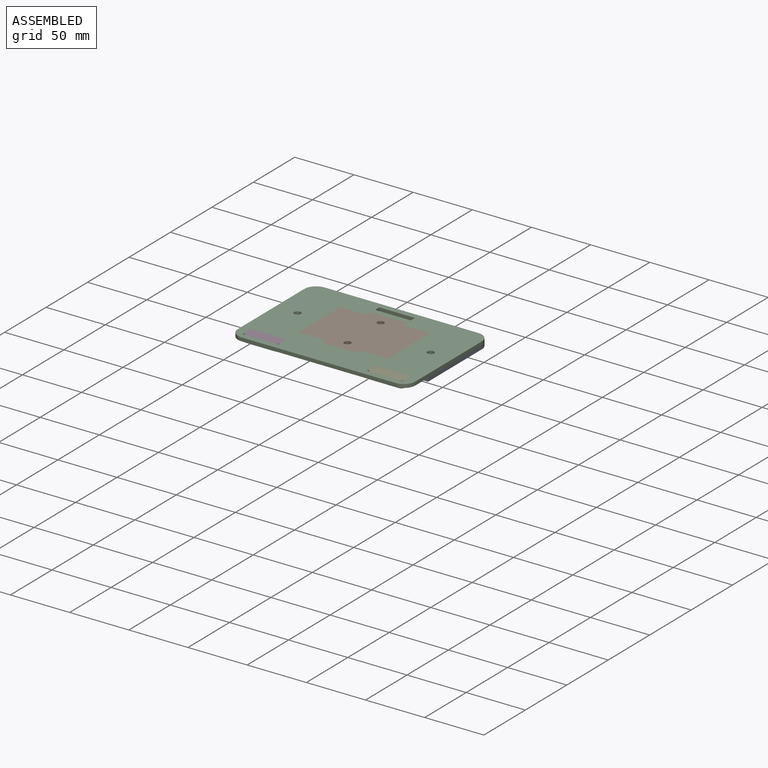
[diagram: assembled view]
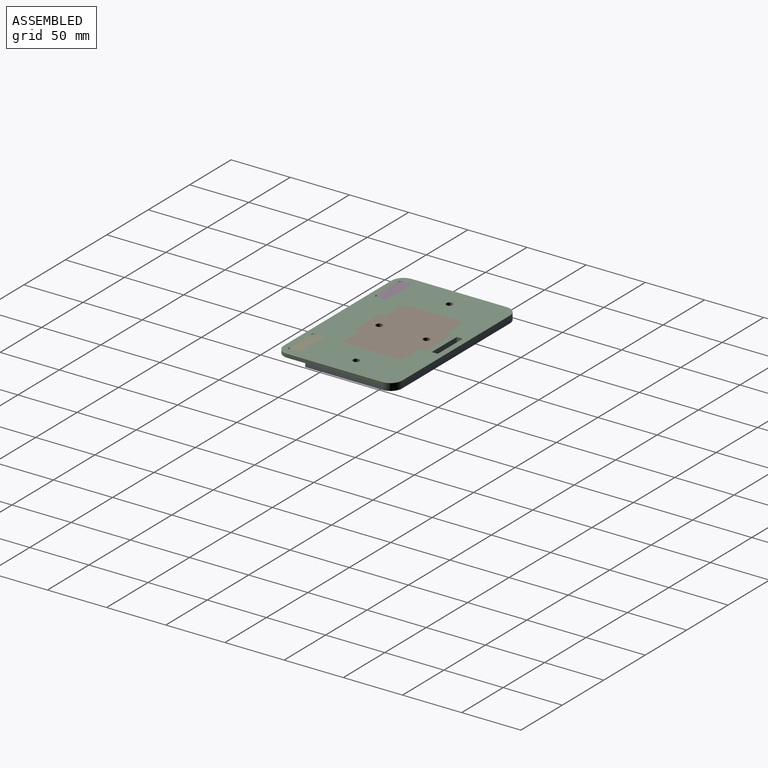
[diagram: assembled view, second angle]
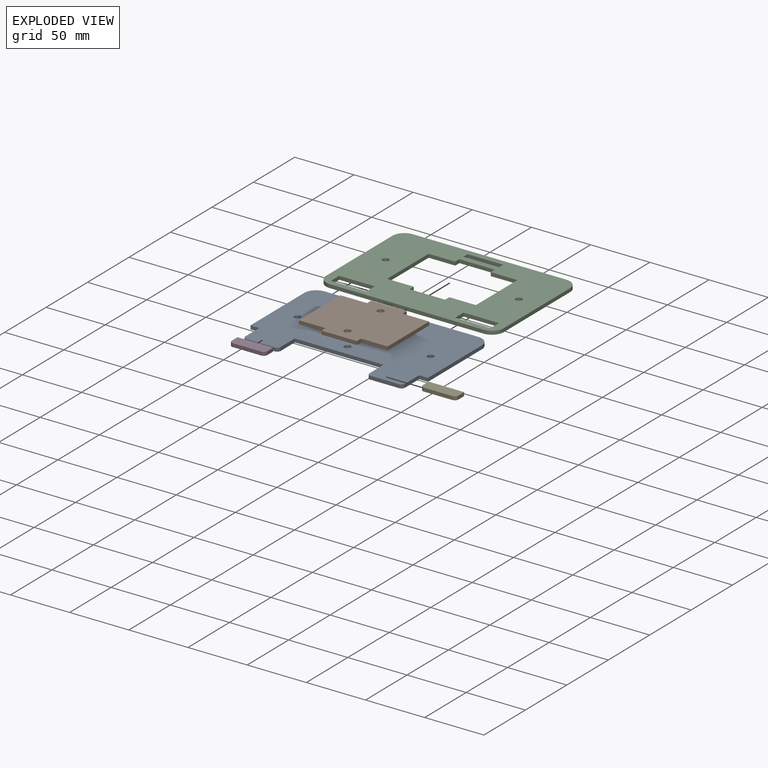
[diagram: exploded view]
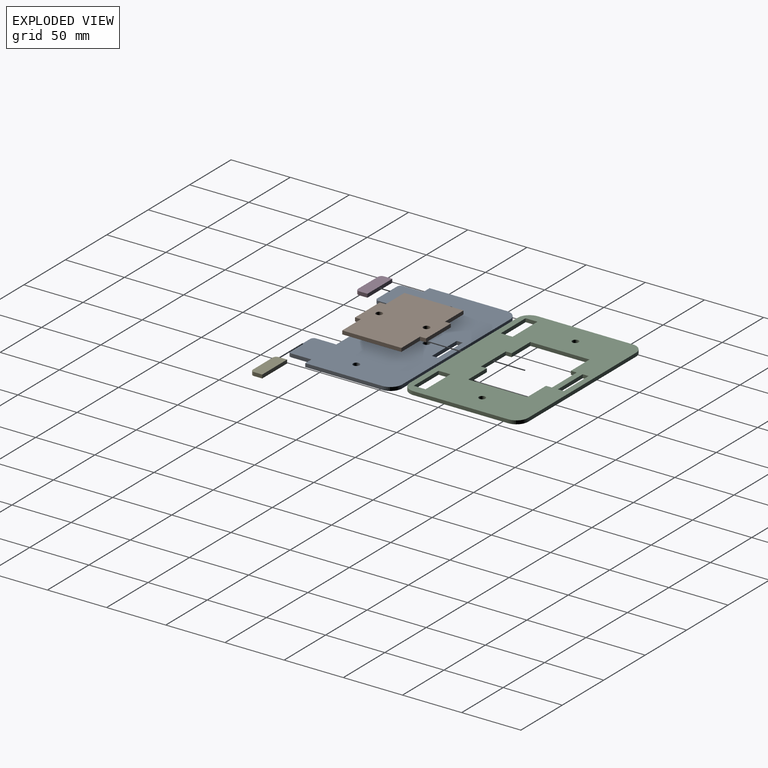
[diagram: exploded view, second angle]
ASSEMBLY  parts=5 mates=12
PART A: 28 faces, bbox 150x95x3 mm
  f0: plane 130x3mm, normal (0,1,0), area 390mm2, adj f1,f25,f26,f27
  f1: cylinder r=10mm len=10mm, axis (0,0,-1), area 47.1mm2, adj f0,f2,f26,f27
  f2: plane 65x3mm, normal (-1,0,0), area 195mm2, adj f1,f3,f26,f27
  f3: plane 7.5x3mm, normal (0,-1,0), area 22.5mm2, adj f2,f4,f26,f27
  f4: plane 17x3mm, normal (-1,0,0), area 51mm2, adj f3,f5,f26,f27
  f5: cylinder r=3mm len=3mm, axis (0,0,-1), area 14.1mm2, adj f4,f6,f26,f27
  f6: plane 24x3mm, normal (0,-1,0), area 72mm2, adj f5,f7,f26,f27
  f7: cylinder r=3mm len=3mm, axis (0,0,-1), area 14.1mm2, adj f6,f8,f26,f27
  f8: plane 17x3mm, normal (1,0,0), area 51mm2, adj f7,f9,f26,f27
  f9: plane 75x3mm, normal (0,-1,0), area 225mm2, adj f8,f10,f26,f27
  f10: plane 17x3mm, normal (-1,0,0), area 51mm2, adj f9,f11,f26,f27
  f11: cylinder r=3mm len=3mm, axis (0,0,-1), area 14.1mm2, adj f10,f12,f26,f27
  f12: plane 24x3mm, normal (0,-1,0), area 72mm2, adj f11,f13,f26,f27
  f13: cylinder r=3mm len=3mm, axis (0,0,-1), area 14.1mm2, adj f12,f14,f26,f27
  f14: plane 17x3mm, normal (1,0,0), area 51mm2, adj f13,f15,f26,f27
  f15: plane 7.5x3mm, normal (0,-1,0), area 22.5mm2, adj f14,f16,f26,f27
  f16: plane 65x3mm, normal (1,0,0), area 195mm2, adj f15,f25,f26,f27
  f17: plane 5x3mm, normal (1,0,0), area 15mm2, adj f18,f24,f26,f27
  f18: plane 30x3mm, normal (0,-1,0), area 90mm2, adj f17,f19,f26,f27
  f19: plane 5x3mm, normal (-1,0,0), area 15mm2, adj f18,f24,f26,f27
  f20: cylinder r=2.75mm len=5.5mm, axis (0,0,-1), area 51.8mm2, adj f26,f27
  f21: cylinder r=2.75mm len=5.5mm, axis (0,0,-1), area 51.8mm2, adj f26,f27
  f22: cylinder r=2.75mm len=5.5mm, axis (0,0,-1), area 51.8mm2, adj f26,f27
  f23: cylinder r=2.75mm len=5.5mm, axis (0,0,-1), area 51.8mm2, adj f26,f27
  f24: plane 30x3mm, normal (0,1,0), area 90mm2, adj f17,f19,f26,f27
  f25: cylinder r=10mm len=10mm, axis (0,0,-1), area 47.1mm2, adj f0,f16,f26,f27
  f26: plane 150x95mm, normal (0,0,1), area 12154.3mm2, adj f0,f1,f2,f3,f4,f5,f6,f7
  f27: plane 150x95mm, normal (0,0,-1), area 12154.3mm2, adj f0,f1,f2,f3,f4,f5,f6,f7
PART B: 16 faces, bbox 75x60x3 mm
  f0: plane 30x3mm, normal (0,1,0), area 90mm2, adj f1,f12,f14,f15
  f1: plane 5x3mm, normal (-1,0,0), area 15mm2, adj f0,f2,f14,f15
  f2: plane 22.5x3mm, normal (0,1,0), area 67.5mm2, adj f1,f3,f14,f15
  f3: plane 50x3mm, normal (-1,0,0), area 150mm2, adj f2,f4,f14,f15
  f4: plane 22.5x3mm, normal (0,-1,0), area 67.5mm2, adj f3,f5,f14,f15
  f5: plane 5x3mm, normal (-1,0,0), area 15mm2, adj f4,f6,f14,f15
  f6: plane 30x3mm, normal (0,-1,0), area 90mm2, adj f5,f7,f14,f15
  f7: plane 5x3mm, normal (1,0,0), area 15mm2, adj f6,f8,f14,f15
  f8: plane 22.5x3mm, normal (0,-1,0), area 67.5mm2, adj f7,f9,f14,f15
  f9: plane 50x3mm, normal (1,0,0), area 150mm2, adj f8,f10,f14,f15
  f10: plane 22.5x3mm, normal (0,1,0), area 67.5mm2, adj f9,f12,f14,f15
  f11: cylinder r=2.75mm len=5.5mm, axis (0,0,-1), area 51.8mm2, adj f14,f15
  f12: plane 5x3mm, normal (1,0,0), area 15mm2, adj f0,f10,f14,f15
  f13: cylinder r=2.75mm len=5.5mm, axis (0,0,-1), area 51.8mm2, adj f14,f15
  f14: plane 75x60mm, normal (0,0,1), area 4002.5mm2, adj f0,f1,f2,f3,f4,f5,f6,f7
  f15: plane 75x60mm, normal (0,0,-1), area 4002.5mm2, adj f0,f1,f2,f3,f4,f5,f6,f7
PART C: 36 faces, bbox 150x100x3 mm
  f0: plane 5x3mm, normal (1,0,0), area 15mm2, adj f1,f33,f34,f35
  f1: plane 30x3mm, normal (0,-1,0), area 90mm2, adj f0,f2,f34,f35
  f2: plane 5x3mm, normal (-1,0,0), area 15mm2, adj f1,f3,f34,f35
  f3: plane 22.5x3mm, normal (0,-1,0), area 67.5mm2, adj f2,f4,f34,f35
  f4: plane 50x3mm, normal (-1,0,0), area 150mm2, adj f3,f5,f34,f35
  f5: plane 22.5x3mm, normal (0,1,0), area 67.5mm2, adj f4,f6,f34,f35
  f6: plane 5x3mm, normal (-1,0,0), area 15mm2, adj f5,f7,f34,f35
  f7: plane 30x3mm, normal (0,1,0), area 90mm2, adj f6,f8,f34,f35
  f8: plane 5x3mm, normal (1,0,0), area 15mm2, adj f7,f9,f34,f35
  f9: plane 22.5x3mm, normal (0,1,0), area 67.5mm2, adj f8,f10,f34,f35
  f10: plane 50x3mm, normal (1,0,0), area 150mm2, adj f9,f33,f34,f35
  f11: plane 80x3mm, normal (1,0,0), area 240mm2, adj f12,f27,f34,f35
  f12: cylinder r=10mm len=10mm, axis (0,0,-1), area 47.1mm2, adj f11,f13,f34,f35
  f13: plane 130x3mm, normal (0,1,0), area 390mm2, adj f12,f14,f34,f35
  f14: cylinder r=10mm len=10mm, axis (0,0,-1), area 47.1mm2, adj f13,f15,f34,f35
  f15: plane 80x3mm, normal (-1,0,0), area 240mm2, adj f14,f16,f34,f35
  f16: cylinder r=10mm len=10mm, axis (0,0,-1), area 47.1mm2, adj f15,f17,f34,f35
  f17: plane 130x3mm, normal (0,-1,0), area 390mm2, adj f16,f27,f34,f35
  f18: plane 10x3mm, normal (1,0,0), area 30mm2, adj f19,f30,f34,f35
  f19: plane 30x3mm, normal (0,-1,0), area 90mm2, adj f18,f20,f34,f35
  f20: plane 10x3mm, normal (-1,0,0), area 30mm2, adj f19,f30,f34,f35
  f21: plane 10x3mm, normal (1,0,0), area 30mm2, adj f22,f31,f34,f35
  f22: plane 30x3mm, normal (0,-1,0), area 90mm2, adj f21,f23,f34,f35
  f23: plane 10x3mm, normal (-1,0,0), area 30mm2, adj f22,f31,f34,f35
  f24: plane 5x3mm, normal (1,0,0), area 15mm2, adj f25,f32,f34,f35
  f25: plane 30x3mm, normal (0,-1,0), area 90mm2, adj f24,f26,f34,f35
  f26: plane 5x3mm, normal (-1,0,0), area 15mm2, adj f25,f32,f34,f35
  f27: cylinder r=10mm len=10mm, axis (0,0,-1), area 47.1mm2, adj f11,f17,f34,f35
  f28: cylinder r=2.75mm len=5.5mm, axis (0,0,-1), area 51.8mm2, adj f34,f35
  f29: cylinder r=2.75mm len=5.5mm, axis (0,0,-1), area 51.8mm2, adj f34,f35
  f30: plane 30x3mm, normal (0,1,0), area 90mm2, adj f18,f20,f34,f35
  f31: plane 30x3mm, normal (0,1,0), area 90mm2, adj f21,f23,f34,f35
  f32: plane 30x3mm, normal (0,1,0), area 90mm2, adj f24,f26,f34,f35
  f33: plane 22.5x3mm, normal (0,-1,0), area 67.5mm2, adj f0,f10,f34,f35
  f34: plane 150x100mm, normal (0,0,1), area 10066.6mm2, adj f0,f1,f2,f3,f4,f5,f6,f7
  f35: plane 150x100mm, normal (0,0,-1), area 10066.6mm2, adj f0,f1,f2,f3,f4,f5,f6,f7
PART D: 8 faces, bbox 30x10x3 mm
  f0: plane 30x3mm, normal (0,1,0), area 90mm2, adj f1,f5,f6,f7
  f1: plane 7x3mm, normal (-1,0,0), area 21mm2, adj f0,f2,f6,f7
  f2: cylinder r=3mm len=3mm, axis (0,0,-1), area 14.1mm2, adj f1,f3,f6,f7
  f3: plane 24x3mm, normal (0,-1,0), area 72mm2, adj f2,f4,f6,f7
  f4: cylinder r=3mm len=3mm, axis (0,0,-1), area 14.1mm2, adj f3,f5,f6,f7
  f5: plane 7x3mm, normal (1,0,0), area 21mm2, adj f0,f4,f6,f7
  f6: plane 30x10mm, normal (0,0,1), area 296.1mm2, adj f0,f1,f2,f3,f4,f5
  f7: plane 30x10mm, normal (0,0,-1), area 296.1mm2, adj f0,f1,f2,f3,f4,f5
PART E: same geometry as D
PLACE A t=(0,0.28,-3)mm
PLACE B t=(0,5.28,0)mm
PLACE C t=(0,0.28,0)mm
PLACE D t=(-52.5,-39.72,0)mm
PLACE E t=(52.5,-39.72,0)mm
MATE planar B.f9 <-> C.f4  axis (1,0,0) through (37.5,5.28,1.5)mm
MATE planar B.f0 <-> C.f1  axis (0,1,0) through (0,35.28,1.5)mm
MATE planar D.f3 <-> A.f6  axis (0,-1,0) through (-52.5,-44.72,1.5)mm
MATE planar D.f7 <-> A.f26  axis (0,0,-1) through (-52.5,-39.66,0)mm
MATE planar A.f0 <-> C.f13  axis (0,1,0) through (0,50.28,-1.5)mm
MATE planar A.f16 <-> C.f11  axis (1,0,0) through (75,7.78,-1.5)mm
MATE planar D.f5 <-> C.f20  axis (1,0,0) through (-37.5,-38.22,1.5)mm
MATE planar E.f5 <-> A.f14  axis (1,0,0) through (67.5,-38.22,1.5)mm
MATE planar A.f26 <-> C.f35  axis (0,0,1) through (0,7.69,0)mm
MATE planar E.f3 <-> A.f12  axis (0,-1,0) through (52.5,-44.72,1.5)mm
MATE planar B.f15 <-> A.f26  axis (0,0,-1) through (0,5.28,0)mm
MATE planar E.f7 <-> A.f26  axis (0,0,-1) through (52.5,-39.66,0)mm
